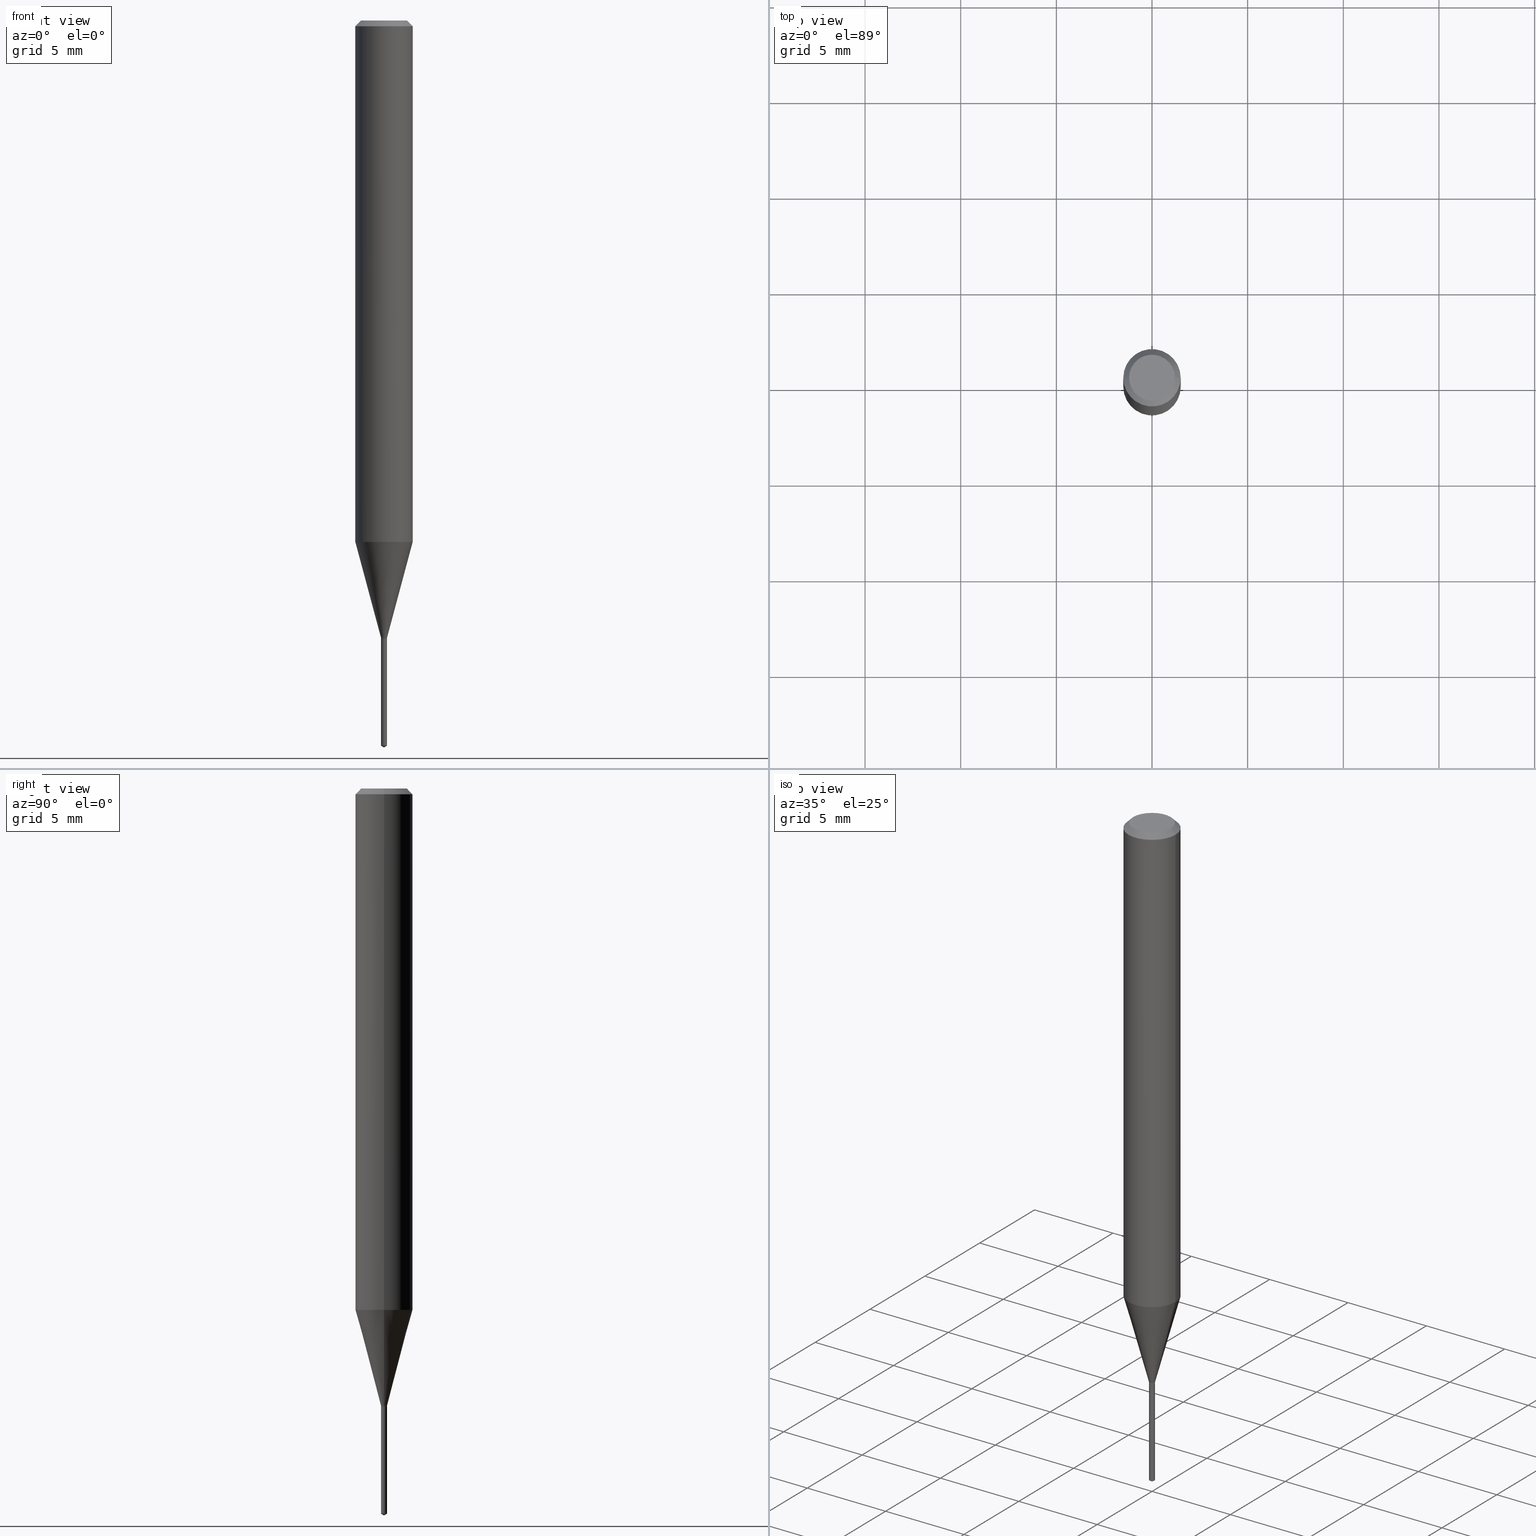
[diagram: canonical four-view strip — front | top / right | iso, engineering-drawing reading convention]
A machine part, canonical four-view strip (front | top / right | iso — engineering-drawing reading convention). The complete STEP part file that produces these views, byte-faithful:
ISO-10303-21;
HEADER;
FILE_DESCRIPTION (( 'STEP AP203' ),
    '1' );
FILE_NAME ('08073.STEP',
    '2024-04-24T10:37:50',
    ( '' ),
    ( '' ),
    'SwSTEP 2.0',
    'SolidWorks 2023',
    '' );
FILE_SCHEMA (( 'CONFIG_CONTROL_DESIGN' ));
ENDSEC;

DATA;
#1 = CIRCLE ( 'NONE', #359, 0.006300000000000000044 ) ;
#2 = CARTESIAN_POINT ( 'NONE',  ( 3.109902680825638129E-29, -4.440116818606828093E-15, -1.271700000000000053 ) ) ;
#3 = PERSON_AND_ORGANIZATION ( #432, #321 ) ;
#4 = FACE_OUTER_BOUND ( 'NONE', #235, .T. ) ;
#5 = DIRECTION ( 'NONE',  ( 1.000000000000000000, -6.982962677686266711E-15, 0.000000000000000000 ) ) ;
#6 = AXIS2_PLACEMENT_3D ( 'NONE', #490, #33, #31 ) ;
#7 = DIRECTION ( 'NONE',  ( 1.000000000000000000, -6.982962677686266711E-15, 0.000000000000000000 ) ) ;
#8 = SECURITY_CLASSIFICATION ( '', '', #202 ) ;
#9 = EDGE_LOOP ( 'NONE', ( #478, #354 ) ) ;
#10 = EDGE_CURVE ( 'NONE', #19, #473, #255, .T. ) ;
#11 = DIRECTION ( 'NONE',  ( 2.438088387897960049E-29, -3.491481338843145188E-15, -1.000000000000000000 ) ) ;
#12 = VERTEX_POINT ( 'NONE', #108 ) ;
#13 = LINE ( 'NONE', #94, #375 ) ;
#14 = ORIENTED_EDGE ( 'NONE', *, *, #115, .F. ) ;
#15 = PERSON_AND_ORGANIZATION_ROLE ( 'classification_officer' ) ;
#16 = CIRCLE ( 'NONE', #106, 0.05905000000000013710 ) ;
#17 = LINE ( 'NONE', #285, #408 ) ;
#18 = CC_DESIGN_PERSON_AND_ORGANIZATION_ASSIGNMENT ( #348, #15, ( #8 ) ) ;
#19 = VERTEX_POINT ( 'NONE', #356 ) ;
#20 = PERSON_AND_ORGANIZATION_ROLE ( 'design_supplier' ) ;
#21 = ORIENTED_EDGE ( 'NONE', *, *, #10, .F. ) ;
#22 =( NAMED_UNIT ( * ) PLANE_ANGLE_UNIT ( ) SI_UNIT ( $, .RADIAN. ) );
#23 = ORIENTED_EDGE ( 'NONE', *, *, #335, .F. ) ;
#24 = ORIENTED_EDGE ( 'NONE', *, *, #133, .T. ) ;
#25 = EDGE_CURVE ( 'NONE', #312, #420, #1, .T. ) ;
#26 = EDGE_LOOP ( 'NONE', ( #219, #105, #275, #50 ) ) ;
#27 = DIRECTION ( 'NONE',  ( -2.445451076271118923E-29, 3.491506729089142946E-15, 1.000000000000000000 ) ) ;
#28 = DIRECTION ( 'NONE',  ( 1.000000000000000000, -6.982962677686266711E-15, 4.876176775795936353E-29 ) ) ;
#29 = APPROVAL_ROLE ( '' ) ;
#30 = CARTESIAN_POINT ( 'NONE',  ( 3.649404838281690628E-29, -5.210394102578582673E-15, -1.492314578100126354 ) ) ;
#31 = DIRECTION ( 'NONE',  ( 1.000000000000000000, -6.982962677686266711E-15, 4.876185090822587894E-29 ) ) ;
#32 = CARTESIAN_POINT ( 'NONE',  ( 3.109902680825638129E-29, -4.440116818606828093E-15, -1.271700000000000053 ) ) ;
#33 = DIRECTION ( 'NONE',  ( -2.445468806185136597E-29, 3.491481338843145583E-15, 1.000000000000000000 ) ) ;
#34 = DIRECTION ( 'NONE',  ( 1.000000000000000000, -6.982962677686266711E-15, 0.000000000000000000 ) ) ;
#35 = DIRECTION ( 'NONE',  ( -6.982962677686266711E-15, -1.000000000000000000, 0.000000000000000000 ) ) ;
#36 = VECTOR ( 'NONE', #62, 39.37007874015748143 ) ;
#37 = CIRCLE ( 'NONE', #392, 0.006300000000000000044 ) ;
#38 = APPROVAL_PERSON_ORGANIZATION ( #3, #248, #29 ) ;
#39 = FACE_OUTER_BOUND ( 'NONE', #45, .T. ) ;
#40 = EDGE_CURVE ( 'NONE', #473, #420, #319, .T. ) ;
#41 = DIRECTION ( 'NONE',  ( -2.445468806185136877E-29, 3.491481338843145188E-15, 1.000000000000000000 ) ) ;
#42 = ORIENTED_EDGE ( 'NONE', *, *, #65, .T. ) ;
#43 = COORDINATED_UNIVERSAL_TIME_OFFSET ( 5, 0, .BEHIND. ) ;
#44 = DIRECTION ( 'NONE',  ( -2.445468806185136877E-29, 3.491481338843145188E-15, 1.000000000000000000 ) ) ;
#45 = EDGE_LOOP ( 'NONE', ( #173, #183, #303 ) ) ;
#46 = ADVANCED_FACE ( 'NONE', ( #102 ), #434, .T. ) ;
#47 = VECTOR ( 'NONE', #231, 39.37007874015747433 ) ;
#48 = CARTESIAN_POINT ( 'NONE',  ( 3.105256290093886268E-29, -4.433483004063025590E-15, -1.269800000000000040 ) ) ;
#49 = LOCAL_TIME ( 6, 37, 50.00000000000000000, #171 ) ;
#50 = ORIENTED_EDGE ( 'NONE', *, *, #25, .F. ) ;
#51 = DIRECTION ( 'NONE',  ( 1.000000000000000000, -6.982962677686265922E-15, 4.876176775795935793E-29 ) ) ;
#52 = EDGE_LOOP ( 'NONE', ( #23, #283, #42, #424 ) ) ;
#53 = PERSON_AND_ORGANIZATION ( #432, #321 ) ;
#54 = APPROVAL ( #211, 'UNSPECIFIED' ) ;
#55 = VERTEX_POINT ( 'NONE', #208 ) ;
#56 = DATE_AND_TIME ( #428, #419 ) ;
#57 = CIRCLE ( 'NONE', #240, 0.04724000000000000421 ) ;
#58 = CONICAL_SURFACE ( 'NONE', #130, 0.05904999999999999832, 0.7853981633974452814 ) ;
#59 = CARTESIAN_POINT ( 'NONE',  ( -4.399266486939238160E-17, -0.006300000000004440937, -1.271700000000000053 ) ) ;
#60 = APPLICATION_PROTOCOL_DEFINITION ( 'international standard', 'config_control_design', 1994, #290 ) ;
#61 = DIRECTION ( 'NONE',  ( 1.000000000000000000, -6.982962677686194135E-15, 0.000000000000000000 ) ) ;
#62 = DIRECTION ( 'NONE',  ( -5.985567269336000444E-15, -0.8571673007021186619, 0.5150380749100436084 ) ) ;
#63 = APPROVAL_STATUS ( 'not_yet_approved' ) ;
#64 = DIRECTION ( 'NONE',  ( -2.445468806185136597E-29, 3.491481338843145583E-15, 1.000000000000000000 ) ) ;
#65 = EDGE_CURVE ( 'NONE', #239, #308, #287, .T. ) ;
#66 = COORDINATED_UNIVERSAL_TIME_OFFSET ( 5, 0, .BEHIND. ) ;
#67 = AXIS2_PLACEMENT_3D ( 'NONE', #32, #407, #35 ) ;
#68 = ORIENTED_EDGE ( 'NONE', *, *, #304, .T. ) ;
#69 = CIRCLE ( 'NONE', #6, 0.04724000000000000421 ) ;
#70 = DATE_TIME_ROLE ( 'classification_date' ) ;
#71 = CYLINDRICAL_SURFACE ( 'NONE', #360, 0.006300000000000000044 ) ;
#72 = ORIENTED_EDGE ( 'NONE', *, *, #433, .F. ) ;
#73 = DIRECTION ( 'NONE',  ( -2.445468806185136597E-29, 3.491481338843145583E-15, 1.000000000000000000 ) ) ;
#74 = DIRECTION ( 'NONE',  ( -0.7071067811866191821, 7.493145998870612907E-15, 0.7071067811864758523 ) ) ;
#75 = FACE_OUTER_BOUND ( 'NONE', #257, .T. ) ;
#76 = PRODUCT_DEFINITION_FORMATION_WITH_SPECIFIED_SOURCE ( 'ANY', '', #116, .NOT_KNOWN. ) ;
#77 = CARTESIAN_POINT ( 'NONE',  ( 3.649404838281690628E-29, -5.210394102578582673E-15, -1.492314578100126354 ) ) ;
#78 = CARTESIAN_POINT ( 'NONE',  ( -0.005799999999999999600, -4.398905339932742876E-15, -1.271700000000000053 ) ) ;
#79 = DIRECTION ( 'NONE',  ( -6.982962677686266711E-15, -1.000000000000000000, 0.000000000000000000 ) ) ;
#80 = EDGE_CURVE ( 'NONE', #358, #239, #57, .T. ) ;
#81 = DIRECTION ( 'NONE',  ( -2.445468806185136597E-29, 3.491481338843145583E-15, 1.000000000000000000 ) ) ;
#82 = DIRECTION ( 'NONE',  ( 1.000000000000000000, -6.982962677686266711E-15, 0.000000000000000000 ) ) ;
#83 = AXIS2_PLACEMENT_3D ( 'NONE', #377, #350, #172 ) ;
#84 = AXIS2_PLACEMENT_3D ( 'NONE', #163, #131, #382 ) ;
#85 = LOCAL_TIME ( 6, 37, 50.00000000000000000, #390 ) ;
#86 = CARTESIAN_POINT ( 'NONE',  ( 3.105256290093886268E-29, -4.433483004063025590E-15, -1.269800000000000040 ) ) ;
#87 = VERTEX_POINT ( 'NONE', #216 ) ;
#88 = DIRECTION ( 'NONE',  ( 6.090539988449838389E-15, 0.8571673007021223256, 0.5150380749100376132 ) ) ;
#89 = ADVANCED_FACE ( 'NONE', ( #363 ), #327, .T. ) ;
#90 = ORIENTED_EDGE ( 'NONE', *, *, #168, .F. ) ;
#91 = CARTESIAN_POINT ( 'NONE',  ( 3.109902680825638129E-29, -4.440116818606828093E-15, -1.271700000000000053 ) ) ;
#92 = ORIENTED_EDGE ( 'NONE', *, *, #323, .T. ) ;
#93 = CONICAL_SURFACE ( 'NONE', #84, 0.005799999999999999600, 0.7853981633975496424 ) ;
#94 = CARTESIAN_POINT ( 'NONE',  ( 0.006300000000000000044, -4.399266486942348614E-17, 3.071991368751439949E-31 ) ) ;
#95 = ORIENTED_EDGE ( 'NONE', *, *, #387, .T. ) ;
#96 = APPROVAL_DATE_TIME ( #56, #54 ) ;
#97 = EDGE_LOOP ( 'NONE', ( #169, #471, #123, #399 ) ) ;
#98 = COORDINATED_UNIVERSAL_TIME_OFFSET ( 5, 0, .BEHIND. ) ;
#99 = ORIENTED_EDGE ( 'NONE', *, *, #199, .F. ) ;
#100 = DIRECTION ( 'NONE',  ( 2.445468806185136597E-29, -3.491481338843145583E-15, -1.000000000000000000 ) ) ;
#101 = VECTOR ( 'NONE', #260, 39.37007874015748143 ) ;
#102 = FACE_OUTER_BOUND ( 'NONE', #458, .T. ) ;
#103 = EDGE_CURVE ( 'NONE', #420, #312, #310, .T. ) ;
#104 = ORIENTED_EDGE ( 'NONE', *, *, #103, .F. ) ;
#105 = ORIENTED_EDGE ( 'NONE', *, *, #152, .T. ) ;
#106 = AXIS2_PLACEMENT_3D ( 'NONE', #489, #449, #146 ) ;
#107 = CONICAL_SURFACE ( 'NONE', #343, 65.52281426577077639, 1.029744258676670299 ) ;
#108 = CARTESIAN_POINT ( 'NONE',  ( -0.005799999999999999600, -4.396256112758631675E-15, -1.271700000000000053 ) ) ;
#109 = ADVANCED_FACE ( 'NONE', ( #405 ), #150, .T. ) ;
#110 = APPROVAL_DATE_TIME ( #222, #248 ) ;
#111 = LINE ( 'NONE', #297, #129 ) ;
#112 = DIRECTION ( 'NONE',  ( 2.445468806185136597E-29, -3.491481338843145583E-15, -1.000000000000000000 ) ) ;
#113 = AXIS2_PLACEMENT_3D ( 'NONE', #487, #414, #156 ) ;
#114 = AXIS2_PLACEMENT_3D ( 'NONE', #86, #272, #425 ) ;
#115 = EDGE_CURVE ( 'NONE', #289, #440, #16, .T. ) ;
#116 = PRODUCT ( '08073', '08073', '', ( #134 ) ) ;
#117 = CARTESIAN_POINT ( 'NONE',  ( -0.04724000000000000421, 3.504923541997677355E-16, -3.380025165670481712E-19 ) ) ;
#118 = SHAPE_DEFINITION_REPRESENTATION ( #296, #158 ) ;
#119 = CYLINDRICAL_SURFACE ( 'NONE', #332, 0.006300000000000000044 ) ;
#120 =( GEOMETRIC_REPRESENTATION_CONTEXT ( 3 ) GLOBAL_UNCERTAINTY_ASSIGNED_CONTEXT ( ( #439 ) ) GLOBAL_UNIT_ASSIGNED_CONTEXT ( ( #355, #22, #280 ) ) REPRESENTATION_CONTEXT ( 'NONE', 'WORKASPACE' ) );
#121 = ADVANCED_FACE ( 'NONE', ( #75 ), #188, .T. ) ;
#122 = DIRECTION ( 'NONE',  ( -2.438088387897960049E-29, 3.491481338843145188E-15, 1.000000000000000000 ) ) ;
#123 = ORIENTED_EDGE ( 'NONE', *, *, #138, .T. ) ;
#124 = PLANE ( 'NONE',  #384 ) ;
#125 = ORIENTED_EDGE ( 'NONE', *, *, #293, .T. ) ;
#126 = DIRECTION ( 'NONE',  ( -1.000000000000000000, 6.982962677686265922E-15, -4.876176775795935793E-29 ) ) ;
#127 = EDGE_LOOP ( 'NONE', ( #379, #24, #125, #386 ) ) ;
#128 = AXIS2_PLACEMENT_3D ( 'NONE', #30, #412, #79 ) ;
#129 = VECTOR ( 'NONE', #187, 39.37007874015748143 ) ;
#130 = AXIS2_PLACEMENT_3D ( 'NONE', #149, #112, #451 ) ;
#131 = DIRECTION ( 'NONE',  ( -2.445468806185136597E-29, 3.491481338843145583E-15, 1.000000000000000000 ) ) ;
#132 = ORIENTED_EDGE ( 'NONE', *, *, #349, .T. ) ;
#133 = EDGE_CURVE ( 'NONE', #440, #289, #383, .T. ) ;
#134 = MECHANICAL_CONTEXT ( 'NONE', #374, 'mechanical' ) ;
#135 = EDGE_LOOP ( 'NONE', ( #244, #426, #164, #90 ) ) ;
#136 = ORIENTED_EDGE ( 'NONE', *, *, #168, .T. ) ;
#137 = LENGTH_MEASURE_WITH_UNIT ( LENGTH_MEASURE( 0.02539999999999999897 ), #317 );
#138 = EDGE_CURVE ( 'NONE', #55, #308, #351, .T. ) ;
#139 = VERTEX_POINT ( 'NONE', #184 ) ;
#140 = DATE_AND_TIME ( #477, #85 ) ;
#141 = CARTESIAN_POINT ( 'NONE',  ( 3.109902680825638129E-29, -4.440116818606828093E-15, -1.271700000000000053 ) ) ;
#142 = ORIENTED_EDGE ( 'NONE', *, *, #262, .F. ) ;
#143 = CC_DESIGN_DATE_AND_TIME_ASSIGNMENT ( #140, #479, ( #365 ) ) ;
#144 = APPROVAL_STATUS ( 'not_yet_approved' ) ;
#145 = DIRECTION ( 'NONE',  ( 1.000000000000000000, -6.982962677686266711E-15, 4.876176775795936353E-29 ) ) ;
#146 = DIRECTION ( 'NONE',  ( 1.000000000000000000, -6.982962677686264344E-15, 0.000000000000000000 ) ) ;
#147 = DIRECTION ( 'NONE',  ( -6.982962677686265922E-15, -1.000000000000000000, 3.468864327941469969E-15 ) ) ;
#148 = DIRECTION ( 'NONE',  ( 1.000000000000000000, -6.982962677686267499E-15, 4.876176775795936353E-29 ) ) ;
#149 = CARTESIAN_POINT ( 'NONE',  ( 2.888098660104663766E-31, -4.123439461173779647E-17, -0.01181000000000007044 ) ) ;
#150 = CYLINDRICAL_SURFACE ( 'NONE', #113, 0.006300000000000000044 ) ;
#151 = DIRECTION ( 'NONE',  ( -2.445468806185136597E-29, 3.491481338843145583E-15, 1.000000000000000000 ) ) ;
#152 = EDGE_CURVE ( 'NONE', #87, #473, #212, .T. ) ;
#153 = AXIS2_PLACEMENT_3D ( 'NONE', #342, #339, #5 ) ;
#154 = AXIS2_PLACEMENT_3D ( 'NONE', #254, #396, #469 ) ;
#155 = CYLINDRICAL_SURFACE ( 'NONE', #298, 0.05905000000000006771 ) ;
#156 = DIRECTION ( 'NONE',  ( -6.982962677686266711E-15, -1.000000000000000000, 0.000000000000000000 ) ) ;
#157 = PLANE ( 'NONE',  #170 ) ;
#158 = ADVANCED_BREP_SHAPE_REPRESENTATION ( '08073', ( #227, #215, #154 ), #120 ) ;
#159 = PRODUCT_RELATED_PRODUCT_CATEGORY ( 'detail', '', ( #116 ) ) ;
#160 = FACE_OUTER_BOUND ( 'NONE', #9, .T. ) ;
#161 = ORIENTED_EDGE ( 'NONE', *, *, #199, .T. ) ;
#162 = CONICAL_SURFACE ( 'NONE', #401, 0.006300000000000000044, 0.2617993877991500740 ) ;
#163 = CARTESIAN_POINT ( 'NONE',  ( 3.109902680825638129E-29, -4.440116818606828093E-15, -1.271700000000000053 ) ) ;
#164 = ORIENTED_EDGE ( 'NONE', *, *, #226, .T. ) ;
#165 = CARTESIAN_POINT ( 'NONE',  ( -0.006300000000000000044, -4.391162848647330369E-15, -1.271200000000000108 ) ) ;
#166 = ORIENTED_EDGE ( 'NONE', *, *, #226, .F. ) ;
#167 = DIRECTION ( 'NONE',  ( 0.7071067811865453523, -7.319954787623248157E-15, -0.7071067811865496822 ) ) ;
#168 = EDGE_CURVE ( 'NONE', #316, #279, #400, .T. ) ;
#169 = ORIENTED_EDGE ( 'NONE', *, *, #80, .F. ) ;
#170 = AXIS2_PLACEMENT_3D ( 'NONE', #421, #122, #51 ) ;
#171 = COORDINATED_UNIVERSAL_TIME_OFFSET ( 5, 0, .BEHIND. ) ;
#172 = DIRECTION ( 'NONE',  ( 1.000000000000000000, -6.982962677686194135E-15, 0.000000000000000000 ) ) ;
#173 = ORIENTED_EDGE ( 'NONE', *, *, #463, .F. ) ;
#174 = CARTESIAN_POINT ( 'NONE',  ( 2.888098660104663766E-31, -4.123439461173779647E-17, -0.01181000000000007044 ) ) ;
#175 = CARTESIAN_POINT ( 'NONE',  ( -0.006300000000000000044, 4.476419235288631203E-17, -3.098929106860590479E-31 ) ) ;
#176 = ORIENTED_EDGE ( 'NONE', *, *, #349, .F. ) ;
#177 = DATE_AND_TIME ( #325, #370 ) ;
#178 = CIRCLE ( 'NONE', #153, 0.005799999999999999600 ) ;
#179 = EDGE_LOOP ( 'NONE', ( #324, #72 ) ) ;
#180 = CARTESIAN_POINT ( 'NONE',  ( 8.265746106709734507E-48, -1.180129479067563789E-33, -3.380025165646692144E-19 ) ) ;
#181 = FACE_OUTER_BOUND ( 'NONE', #203, .T. ) ;
#182 = EDGE_CURVE ( 'NONE', #87, #312, #17, .T. ) ;
#183 = ORIENTED_EDGE ( 'NONE', *, *, #10, .T. ) ;
#184 = CARTESIAN_POINT ( 'NONE',  ( -0.006300000000000000044, -4.391162848647330369E-15, -1.269800000000000040 ) ) ;
#185 = CC_DESIGN_APPROVAL ( #248, ( #8 ) ) ;
#186 = EDGE_CURVE ( 'NONE', #308, #55, #190, .T. ) ;
#187 = DIRECTION ( 'NONE',  ( -2.445468806185136877E-29, 3.491481338843145188E-15, 1.000000000000000000 ) ) ;
#188 = CYLINDRICAL_SURFACE ( 'NONE', #250, 0.006300000000000000044 ) ;
#189 = FACE_OUTER_BOUND ( 'NONE', #314, .T. ) ;
#190 = CIRCLE ( 'NONE', #444, 0.05904999999999999832 ) ;
#191 = DIRECTION ( 'NONE',  ( -0.2588190451025213501, 5.211531920934551042E-15, 0.9659258262890682012 ) ) ;
#192 = CC_DESIGN_PERSON_AND_ORGANIZATION_ASSIGNMENT ( #322, #430, ( #365 ) ) ;
#193 = DIRECTION ( 'NONE',  ( 2.445451076271118923E-29, -3.491506729089142552E-15, -1.000000000000000000 ) ) ;
#194 = ORIENTED_EDGE ( 'NONE', *, *, #293, .F. ) ;
#195 = CALENDAR_DATE ( 2024, 24, 4 ) ;
#196 = CARTESIAN_POINT ( 'NONE',  ( -4.399266486939238160E-17, -0.006300000000004440937, -1.271700000000000053 ) ) ;
#197 = ORIENTED_EDGE ( 'NONE', *, *, #445, .T. ) ;
#198 = DIRECTION ( 'NONE',  ( 1.000000000000000000, -6.982962677686194135E-15, 0.000000000000000000 ) ) ;
#199 = EDGE_CURVE ( 'NONE', #279, #316, #251, .T. ) ;
#200 = LINE ( 'NONE', #457, #268 ) ;
#201 = ORIENTED_EDGE ( 'NONE', *, *, #427, .T. ) ;
#202 = SECURITY_CLASSIFICATION_LEVEL ( 'unclassified' ) ;
#203 = EDGE_LOOP ( 'NONE', ( #429, #95, #340, #194 ) ) ;
#204 = AXIS2_PLACEMENT_3D ( 'NONE', #48, #455, #198 ) ;
#205 = EDGE_CURVE ( 'NONE', #316, #139, #442, .T. ) ;
#206 = CARTESIAN_POINT ( 'NONE',  ( 3.105256290093886268E-29, -4.433483004063025590E-15, -1.269800000000000040 ) ) ;
#207 = DIRECTION ( 'NONE',  ( 1.000000000000000000, -6.982962677686267499E-15, 4.876176775795936353E-29 ) ) ;
#208 = CARTESIAN_POINT ( 'NONE',  ( 0.05904999999999999832, -4.535783407291118600E-16, -0.01181000000000007044 ) ) ;
#209 = APPROVAL_DATE_TIME ( #177, #230 ) ;
#210 = DIRECTION ( 'NONE',  ( 1.000000000000000000, -6.982962677686194135E-15, 0.000000000000000000 ) ) ;
#211 = APPROVAL_STATUS ( 'not_yet_approved' ) ;
#212 = CIRCLE ( 'NONE', #128, 0.006300000000000000044 ) ;
#213 = CIRCLE ( 'NONE', #353, 0.005799999999999999600 ) ;
#214 = CARTESIAN_POINT ( 'NONE',  ( 2.888098660104663766E-31, -4.123439461173779647E-17, -0.01181000000000007044 ) ) ;
#215 = MANIFOLD_SOLID_BREP ( 'Body-Move/Copy2[2]', #232 ) ;
#216 = CARTESIAN_POINT ( 'NONE',  ( 4.476419235292279068E-17, 0.006299999999994788068, -1.492314578100126354 ) ) ;
#217 = ADVANCED_FACE ( 'NONE', ( #294 ), #58, .T. ) ;
#218 = CARTESIAN_POINT ( 'NONE',  ( 0.005799999999999999600, -4.480618002137408553E-15, -1.271700000000000053 ) ) ;
#219 = ORIENTED_EDGE ( 'NONE', *, *, #182, .F. ) ;
#220 = FACE_OUTER_BOUND ( 'NONE', #422, .T. ) ;
#221 = DIRECTION ( 'NONE',  ( -2.445468806185136597E-29, 3.491481338843145583E-15, 1.000000000000000000 ) ) ;
#222 = DATE_AND_TIME ( #195, #393 ) ;
#223 = AXIS2_PLACEMENT_3D ( 'NONE', #206, #64, #210 ) ;
#224 = VECTOR ( 'NONE', #263, 39.37007874015748143 ) ;
#225 = APPROVAL_PERSON_ORGANIZATION ( #284, #54, #362 ) ;
#226 = EDGE_CURVE ( 'NONE', #249, #279, #453, .T. ) ;
#227 = MANIFOLD_SOLID_BREP ( 'Body-Move/Copy2[1]', #415 ) ;
#228 = CARTESIAN_POINT ( 'NONE',  ( -9.261893952565592859E-28, 1.322372839174148049E-13, 37.87397874015748300 ) ) ;
#229 = DIMENSIONAL_EXPONENTS ( 1.000000000000000000, 0.000000000000000000, 0.000000000000000000, 0.000000000000000000, 0.000000000000000000, 0.000000000000000000, 0.000000000000000000 ) ;
#230 = APPROVAL ( #63, 'UNSPECIFIED' ) ;
#231 = DIRECTION ( 'NONE',  ( 0.2588190451025213501, 1.565188264969621968E-15, 0.9659258262890682012 ) ) ;
#232 = CLOSED_SHELL ( 'NONE', ( #410, #217, #273, #299, #481, #121, #46, #89, #488, #448, #394, #241 ) ) ;
#233 = CONICAL_SURFACE ( 'NONE', #476, 65.52281426577077639, 1.029744258676670299 ) ;
#234 = DIRECTION ( 'NONE',  ( -2.445468806185136597E-29, 3.491481338843145583E-15, 1.000000000000000000 ) ) ;
#235 = EDGE_LOOP ( 'NONE', ( #391, #468 ) ) ;
#236 = FACE_OUTER_BOUND ( 'NONE', #381, .T. ) ;
#237 = EDGE_LOOP ( 'NONE', ( #464, #306, #104, #389 ) ) ;
#238 = DIRECTION ( 'NONE',  ( -2.445451076271118923E-29, 3.491506729089142946E-15, 1.000000000000000000 ) ) ;
#239 = VERTEX_POINT ( 'NONE', #117 ) ;
#240 = AXIS2_PLACEMENT_3D ( 'NONE', #180, #253, #441 ) ;
#241 = ADVANCED_FACE ( 'NONE', ( #265 ), #436, .T. ) ;
#242 = VECTOR ( 'NONE', #44, 39.37007874015748143 ) ;
#243 = CARTESIAN_POINT ( 'NONE',  ( -0.006300000000000000044, -4.388718811710139476E-15, -1.269800000000000040 ) ) ;
#244 = ORIENTED_EDGE ( 'NONE', *, *, #304, .F. ) ;
#245 = PERSON_AND_ORGANIZATION ( #432, #321 ) ;
#246 = ORIENTED_EDGE ( 'NONE', *, *, #133, .F. ) ;
#247 = PERSON_AND_ORGANIZATION_ROLE ( 'creator' ) ;
#248 = APPROVAL ( #144, 'UNSPECIFIED' ) ;
#249 = VERTEX_POINT ( 'NONE', #218 ) ;
#250 = AXIS2_PLACEMENT_3D ( 'NONE', #452, #337, #148 ) ;
#251 = CIRCLE ( 'NONE', #336, 0.006300000000000000044 ) ;
#252 = DIRECTION ( 'NONE',  ( -1.000000000000000000, 6.982962677686266711E-15, 0.000000000000000000 ) ) ;
#253 = DIRECTION ( 'NONE',  ( -2.445468806185136597E-29, 3.491481338843145583E-15, 1.000000000000000000 ) ) ;
#254 = CARTESIAN_POINT ( 'NONE',  ( 0.000000000000000000, 0.000000000000000000, 0.000000000000000000 ) ) ;
#255 = LINE ( 'NONE', #395, #36 ) ;
#256 = DIRECTION ( 'NONE',  ( -2.445451076271118643E-29, 3.491506729089142552E-15, 1.000000000000000000 ) ) ;
#257 = EDGE_LOOP ( 'NONE', ( #345, #136, #281, #397 ) ) ;
#258 = ADVANCED_FACE ( 'NONE', ( #486 ), #71, .T. ) ;
#259 = AXIS2_PLACEMENT_3D ( 'NONE', #475, #403, #28 ) ;
#260 = DIRECTION ( 'NONE',  ( -0.7071067811865453523, 2.468850131082234184E-15, -0.7071067811865496822 ) ) ;
#261 = CARTESIAN_POINT ( 'NONE',  ( 0.006300000000000000044, -4.477475668932449058E-15, -1.269800000000000040 ) ) ;
#262 = EDGE_CURVE ( 'NONE', #473, #87, #37, .T. ) ;
#263 = DIRECTION ( 'NONE',  ( 0.7071067811866191821, -2.468850131083007662E-15, 0.7071067811864758523 ) ) ;
#264 = DIRECTION ( 'NONE',  ( 1.000000000000000000, -6.982962677686264344E-15, 0.000000000000000000 ) ) ;
#265 = FACE_OUTER_BOUND ( 'NONE', #135, .T. ) ;
#266 = ADVANCED_FACE ( 'NONE', ( #189 ), #233, .T. ) ;
#267 = CARTESIAN_POINT ( 'NONE',  ( 0.000000000000000000, 0.000000000000000000, 0.000000000000000000 ) ) ;
#268 = VECTOR ( 'NONE', #88, 39.37007874015748854 ) ;
#269 = VERTEX_POINT ( 'NONE', #261 ) ;
#270 = CARTESIAN_POINT ( 'NONE',  ( 0.006300000000000000044, -4.477475668932449058E-15, -1.269800000000000040 ) ) ;
#271 = ORIENTED_EDGE ( 'NONE', *, *, #357, .F. ) ;
#272 = DIRECTION ( 'NONE',  ( -2.445468806185136597E-29, 3.491481338843145583E-15, 1.000000000000000000 ) ) ;
#273 = ADVANCED_FACE ( 'NONE', ( #181 ), #155, .T. ) ;
#274 = CARTESIAN_POINT ( 'NONE',  ( -4.399266486938697667E-17, -0.006300000000005210286, -1.492314578100126354 ) ) ;
#275 = ORIENTED_EDGE ( 'NONE', *, *, #40, .T. ) ;
#276 = CONICAL_SURFACE ( 'NONE', #302, 0.05904999999999999832, 0.7853981633974452814 ) ;
#277 = ORIENTED_EDGE ( 'NONE', *, *, #323, .F. ) ;
#278 = CC_DESIGN_PERSON_AND_ORGANIZATION_ASSIGNMENT ( #53, #20, ( #76 ) ) ;
#279 = VERTEX_POINT ( 'NONE', #292 ) ;
#280 =( NAMED_UNIT ( * ) SI_UNIT ( $, .STERADIAN. ) SOLID_ANGLE_UNIT ( ) );
#281 = ORIENTED_EDGE ( 'NONE', *, *, #357, .T. ) ;
#282 = VECTOR ( 'NONE', #167, 39.37007874015748143 ) ;
#283 = ORIENTED_EDGE ( 'NONE', *, *, #286, .F. ) ;
#284 = PERSON_AND_ORGANIZATION ( #432, #321 ) ;
#285 = CARTESIAN_POINT ( 'NONE',  ( 4.476419235291740424E-17, 0.006299999999995560020, -1.271700000000000053 ) ) ;
#286 = EDGE_CURVE ( 'NONE', #239, #358, #69, .T. ) ;
#287 = LINE ( 'NONE', #366, #101 ) ;
#288 = DIRECTION ( 'NONE',  ( -2.445468806185136597E-29, 3.491481338843145583E-15, 1.000000000000000000 ) ) ;
#289 = VERTEX_POINT ( 'NONE', #446 ) ;
#290 = APPLICATION_CONTEXT ( 'configuration controlled 3d designs of mechanical parts and assemblies' ) ;
#291 = CC_DESIGN_APPROVAL ( #54, ( #76 ) ) ;
#292 = CARTESIAN_POINT ( 'NONE',  ( 0.006300000000000000044, -4.482363742806830057E-15, -1.271200000000000108 ) ) ;
#293 = EDGE_CURVE ( 'NONE', #289, #55, #111, .T. ) ;
#294 = FACE_OUTER_BOUND ( 'NONE', #97, .T. ) ;
#295 = CARTESIAN_POINT ( 'NONE',  ( 2.623827410402727989E-29, -3.746130155737801060E-15, -1.072934319900741729 ) ) ;
#296 = PRODUCT_DEFINITION_SHAPE ( 'NONE', 'NONE',  #365 ) ;
#297 = CARTESIAN_POINT ( 'NONE',  ( 0.05905000000000006771, -4.123439461173745257E-16, 2.879382386107503723E-30 ) ) ;
#298 = AXIS2_PLACEMENT_3D ( 'NONE', #483, #73, #145 ) ;
#299 = ADVANCED_FACE ( 'NONE', ( #220 ), #162, .T. ) ;
#300 = CARTESIAN_POINT ( 'NONE',  ( -0.05905000000000014404, -3.326554670271460778E-15, -1.072934319900741729 ) ) ;
#301 = PLANE ( 'NONE',  #485 ) ;
#302 = AXIS2_PLACEMENT_3D ( 'NONE', #174, #100, #252 ) ;
#303 = ORIENTED_EDGE ( 'NONE', *, *, #152, .F. ) ;
#304 = EDGE_CURVE ( 'NONE', #12, #316, #411, .T. ) ;
#305 = LINE ( 'NONE', #243, #466 ) ;
#306 = ORIENTED_EDGE ( 'NONE', *, *, #182, .T. ) ;
#307 = LINE ( 'NONE', #309, #242 ) ;
#308 = VERTEX_POINT ( 'NONE', #459 ) ;
#309 = CARTESIAN_POINT ( 'NONE',  ( -0.05905000000000006771, 4.195754854663396409E-16, -2.904631170795525045E-30 ) ) ;
#310 = CIRCLE ( 'NONE', #67, 0.006300000000000000044 ) ;
#311 = CC_DESIGN_PERSON_AND_ORGANIZATION_ASSIGNMENT ( #315, #398, ( #116 ) ) ;
#312 = VERTEX_POINT ( 'NONE', #378 ) ;
#313 = CALENDAR_DATE ( 2024, 24, 4 ) ;
#314 = EDGE_LOOP ( 'NONE', ( #21, #461, #142 ) ) ;
#315 = PERSON_AND_ORGANIZATION ( #432, #321 ) ;
#316 = VERTEX_POINT ( 'NONE', #165 ) ;
#317 =( LENGTH_UNIT ( ) NAMED_UNIT ( * ) SI_UNIT ( $, .METRE. ) );
#318 = DIRECTION ( 'NONE',  ( -2.445468806185136877E-29, 3.491481338843145188E-15, 1.000000000000000000 ) ) ;
#319 = LINE ( 'NONE', #59, #484 ) ;
#320 = CIRCLE ( 'NONE', #114, 0.006300000000000000044 ) ;
#321 = ORGANIZATION ( 'UNSPECIFIED', 'UNSPECIFIED', '' ) ;
#322 = PERSON_AND_ORGANIZATION ( #432, #321 ) ;
#323 = EDGE_CURVE ( 'NONE', #139, #440, #305, .T. ) ;
#324 = ORIENTED_EDGE ( 'NONE', *, *, #427, .F. ) ;
#325 = CALENDAR_DATE ( 2024, 24, 4 ) ;
#326 = DIRECTION ( 'NONE',  ( -2.445468806185136597E-29, 3.491481338843145583E-15, 1.000000000000000000 ) ) ;
#327 = CYLINDRICAL_SURFACE ( 'NONE', #259, 0.05905000000000006771 ) ;
#328 = DIRECTION ( 'NONE',  ( -6.982962677686266711E-15, -1.000000000000000000, 0.000000000000000000 ) ) ;
#329 = DIRECTION ( 'NONE',  ( -2.445451076271118643E-29, 3.491506729089142552E-15, 1.000000000000000000 ) ) ;
#330 = EDGE_CURVE ( 'NONE', #269, #289, #338, .T. ) ;
#331 = AXIS2_PLACEMENT_3D ( 'NONE', #295, #221, #264 ) ;
#332 = AXIS2_PLACEMENT_3D ( 'NONE', #267, #234, #207 ) ;
#333 = DIRECTION ( 'NONE',  ( 1.000000000000000000, -6.982962677686194135E-15, 0.000000000000000000 ) ) ;
#334 = AXIS2_PLACEMENT_3D ( 'NONE', #2, #151, #34 ) ;
#335 = EDGE_CURVE ( 'NONE', #358, #55, #465, .T. ) ;
#336 = AXIS2_PLACEMENT_3D ( 'NONE', #470, #288, #61 ) ;
#337 = DIRECTION ( 'NONE',  ( -2.445468806185136597E-29, 3.491481338843145583E-15, 1.000000000000000000 ) ) ;
#338 = LINE ( 'NONE', #270, #47 ) ;
#339 = DIRECTION ( 'NONE',  ( -2.445468806185136597E-29, 3.491481338843145583E-15, 1.000000000000000000 ) ) ;
#340 = ORIENTED_EDGE ( 'NONE', *, *, #138, .F. ) ;
#341 = ADVANCED_FACE ( 'NONE', ( #39 ), #107, .T. ) ;
#342 = CARTESIAN_POINT ( 'NONE',  ( 3.109902680825638129E-29, -4.440116818606828093E-15, -1.271700000000000053 ) ) ;
#343 = AXIS2_PLACEMENT_3D ( 'NONE', #344, #238, #380 ) ;
#344 = CARTESIAN_POINT ( 'NONE',  ( -9.261893952565592859E-28, 1.322372839174148049E-13, 37.87397874015748300 ) ) ;
#345 = ORIENTED_EDGE ( 'NONE', *, *, #205, .F. ) ;
#346 = FACE_OUTER_BOUND ( 'NONE', #352, .T. ) ;
#347 = ORIENTED_EDGE ( 'NONE', *, *, #330, .T. ) ;
#348 = PERSON_AND_ORGANIZATION ( #432, #321 ) ;
#349 = EDGE_CURVE ( 'NONE', #269, #139, #320, .T. ) ;
#350 = DIRECTION ( 'NONE',  ( -2.445468806185136597E-29, 3.491481338843145583E-15, 1.000000000000000000 ) ) ;
#351 = CIRCLE ( 'NONE', #450, 0.05904999999999999832 ) ;
#352 = EDGE_LOOP ( 'NONE', ( #161, #443, #176, #271 ) ) ;
#353 = AXIS2_PLACEMENT_3D ( 'NONE', #413, #81, #7 ) ;
#354 = ORIENTED_EDGE ( 'NONE', *, *, #80, .T. ) ;
#355 =( CONVERSION_BASED_UNIT ( 'INCH', #137 ) LENGTH_UNIT ( ) NAMED_UNIT ( #229 ) );
#356 = CARTESIAN_POINT ( 'NONE',  ( 3.658639355209220542E-29, -5.223643217390265926E-15, -1.496099999999999985 ) ) ;
#357 = EDGE_CURVE ( 'NONE', #279, #269, #13, .T. ) ;
#358 = VERTEX_POINT ( 'NONE', #385 ) ;
#359 = AXIS2_PLACEMENT_3D ( 'NONE', #141, #435, #431 ) ;
#360 = AXIS2_PLACEMENT_3D ( 'NONE', #409, #404, #364 ) ;
#361 = CC_DESIGN_APPROVAL ( #230, ( #365 ) ) ;
#362 = APPROVAL_ROLE ( '' ) ;
#363 = FACE_OUTER_BOUND ( 'NONE', #127, .T. ) ;
#364 = DIRECTION ( 'NONE',  ( -6.982962677686266711E-15, -1.000000000000000000, 0.000000000000000000 ) ) ;
#365 = PRODUCT_DEFINITION ( 'UNKNOWN', '', #76, #460 ) ;
#366 = CARTESIAN_POINT ( 'NONE',  ( -0.05904999999999999832, 3.711095515056362547E-16, -0.01181000000000007044 ) ) ;
#367 = CARTESIAN_POINT ( 'NONE',  ( 3.105256290093886268E-29, -4.433483004063025590E-15, -1.269800000000000040 ) ) ;
#368 = CARTESIAN_POINT ( 'NONE',  ( 2.888098660104663766E-31, -4.123439461173779647E-17, -0.01181000000000007044 ) ) ;
#369 = VECTOR ( 'NONE', #74, 39.37007874015748143 ) ;
#370 = LOCAL_TIME ( 6, 37, 50.00000000000000000, #66 ) ;
#371 = DIRECTION ( 'NONE',  ( -2.445451076271118923E-29, 3.491506729089142946E-15, 1.000000000000000000 ) ) ;
#372 = DIRECTION ( 'NONE',  ( -2.445468806185136597E-29, 3.491481338843145583E-15, 1.000000000000000000 ) ) ;
#373 = ADVANCED_FACE ( 'NONE', ( #4 ), #124, .F. ) ;
#374 = APPLICATION_CONTEXT ( 'configuration controlled 3d designs of mechanical parts and assemblies' ) ;
#375 = VECTOR ( 'NONE', #41, 39.37007874015748143 ) ;
#376 = CARTESIAN_POINT ( 'NONE',  ( 0.05904999999999999832, -4.463468013801466955E-16, -0.01181000000000007044 ) ) ;
#377 = CARTESIAN_POINT ( 'NONE',  ( 3.108679946422545888E-29, -4.438371077937407378E-15, -1.271200000000000108 ) ) ;
#378 = CARTESIAN_POINT ( 'NONE',  ( 4.476419235292282766E-17, 0.006299999999995559152, -1.271700000000000053 ) ) ;
#379 = ORIENTED_EDGE ( 'NONE', *, *, #387, .F. ) ;
#380 = DIRECTION ( 'NONE',  ( -6.982962677686265922E-15, -1.000000000000000000, 3.468864327941469969E-15 ) ) ;
#381 = EDGE_LOOP ( 'NONE', ( #201, #68, #99, #166 ) ) ;
#382 = DIRECTION ( 'NONE',  ( 1.000000000000000000, -6.982962677686266711E-15, 0.000000000000000000 ) ) ;
#383 = CIRCLE ( 'NONE', #331, 0.05905000000000013710 ) ;
#384 = AXIS2_PLACEMENT_3D ( 'NONE', #91, #193, #418 ) ;
#385 = CARTESIAN_POINT ( 'NONE',  ( 0.04724000000000000421, -3.852183633974369345E-16, -3.380025165621689721E-19 ) ) ;
#386 = ORIENTED_EDGE ( 'NONE', *, *, #186, .F. ) ;
#387 = EDGE_CURVE ( 'NONE', #440, #308, #307, .T. ) ;
#388 = PERSON_AND_ORGANIZATION ( #432, #321 ) ;
#389 = ORIENTED_EDGE ( 'NONE', *, *, #40, .F. ) ;
#390 = COORDINATED_UNIVERSAL_TIME_OFFSET ( 5, 0, .BEHIND. ) ;
#391 = ORIENTED_EDGE ( 'NONE', *, *, #103, .T. ) ;
#392 = AXIS2_PLACEMENT_3D ( 'NONE', #77, #27, #328 ) ;
#393 = LOCAL_TIME ( 6, 37, 50.00000000000000000, #43 ) ;
#394 = ADVANCED_FACE ( 'NONE', ( #423 ), #157, .F. ) ;
#395 = CARTESIAN_POINT ( 'NONE',  ( 3.658639355209220542E-29, -5.223643217390265926E-15, -1.496099999999999985 ) ) ;
#396 = DIRECTION ( 'NONE',  ( 0.000000000000000000, 0.000000000000000000, 1.000000000000000000 ) ) ;
#397 = ORIENTED_EDGE ( 'NONE', *, *, #445, .F. ) ;
#398 = PERSON_AND_ORGANIZATION_ROLE ( 'design_owner' ) ;
#399 = ORIENTED_EDGE ( 'NONE', *, *, #65, .F. ) ;
#400 = CIRCLE ( 'NONE', #83, 0.006300000000000000044 ) ;
#401 = AXIS2_PLACEMENT_3D ( 'NONE', #367, #406, #333 ) ;
#402 = DATE_AND_TIME ( #313, #49 ) ;
#403 = DIRECTION ( 'NONE',  ( -2.445468806185136597E-29, 3.491481338843145583E-15, 1.000000000000000000 ) ) ;
#404 = DIRECTION ( 'NONE',  ( -2.445451076271118923E-29, 3.491506729089142946E-15, 1.000000000000000000 ) ) ;
#405 = FACE_OUTER_BOUND ( 'NONE', #237, .T. ) ;
#406 = DIRECTION ( 'NONE',  ( -2.445468806185136597E-29, 3.491481338843145583E-15, 1.000000000000000000 ) ) ;
#407 = DIRECTION ( 'NONE',  ( -2.445451076271118923E-29, 3.491506729089142946E-15, 1.000000000000000000 ) ) ;
#408 = VECTOR ( 'NONE', #256, 39.37007874015748143 ) ;
#409 = CARTESIAN_POINT ( 'NONE',  ( 3.109902680825638129E-29, -4.440116818606828093E-15, -1.271700000000000053 ) ) ;
#410 = ADVANCED_FACE ( 'NONE', ( #236 ), #93, .T. ) ;
#411 = LINE ( 'NONE', #78, #369 ) ;
#412 = DIRECTION ( 'NONE',  ( -2.445451076271118923E-29, 3.491506729089142946E-15, 1.000000000000000000 ) ) ;
#413 = CARTESIAN_POINT ( 'NONE',  ( 3.109902680825638129E-29, -4.440116818606828093E-15, -1.271700000000000053 ) ) ;
#414 = DIRECTION ( 'NONE',  ( -2.445451076271118923E-29, 3.491506729089142946E-15, 1.000000000000000000 ) ) ;
#415 = CLOSED_SHELL ( 'NONE', ( #109, #266, #341, #258, #373 ) ) ;
#416 = CC_DESIGN_DATE_AND_TIME_ASSIGNMENT ( #402, #70, ( #8 ) ) ;
#417 = CIRCLE ( 'NONE', #204, 0.006300000000000000044 ) ;
#418 = DIRECTION ( 'NONE',  ( 6.982962677686265922E-15, 1.000000000000000000, -3.491506729089142552E-15 ) ) ;
#419 = LOCAL_TIME ( 6, 37, 50.00000000000000000, #98 ) ;
#420 = VERTEX_POINT ( 'NONE', #196 ) ;
#421 = CARTESIAN_POINT ( 'NONE',  ( 3.109902680825638129E-29, -4.440116818606828093E-15, -1.271700000000000053 ) ) ;
#422 = EDGE_LOOP ( 'NONE', ( #132, #92, #14, #482 ) ) ;
#423 = FACE_OUTER_BOUND ( 'NONE', #179, .T. ) ;
#424 = ORIENTED_EDGE ( 'NONE', *, *, #186, .T. ) ;
#425 = DIRECTION ( 'NONE',  ( 1.000000000000000000, -6.982962677686194135E-15, 0.000000000000000000 ) ) ;
#426 = ORIENTED_EDGE ( 'NONE', *, *, #433, .T. ) ;
#427 = EDGE_CURVE ( 'NONE', #249, #12, #178, .T. ) ;
#428 = CALENDAR_DATE ( 2024, 24, 4 ) ;
#429 = ORIENTED_EDGE ( 'NONE', *, *, #115, .T. ) ;
#430 = PERSON_AND_ORGANIZATION_ROLE ( 'creator' ) ;
#431 = DIRECTION ( 'NONE',  ( -6.982962677686266711E-15, -1.000000000000000000, 0.000000000000000000 ) ) ;
#432 = PERSON ( 'UNSPECIFIED', 'UNSPECIFIED', 'UNSPECIFIED', ('UNSPECIFIED'), ('UNSPECIFIED'), ('UNSPECIFIED') ) ;
#433 = EDGE_CURVE ( 'NONE', #12, #249, #213, .T. ) ;
#434 = CONICAL_SURFACE ( 'NONE', #223, 0.006300000000000000044, 0.2617993877991500740 ) ;
#435 = DIRECTION ( 'NONE',  ( -2.445451076271118923E-29, 3.491506729089142946E-15, 1.000000000000000000 ) ) ;
#436 = CONICAL_SURFACE ( 'NONE', #334, 0.005799999999999999600, 0.7853981633975496424 ) ;
#437 = APPROVAL_PERSON_ORGANIZATION ( #245, #230, #472 ) ;
#438 = APPLICATION_PROTOCOL_DEFINITION ( 'international standard', 'config_control_design', 1994, #374 ) ;
#439 = UNCERTAINTY_MEASURE_WITH_UNIT (LENGTH_MEASURE( 1.000000000000000082E-05 ), #355, 'distance_accuracy_value', 'NONE');
#440 = VERTEX_POINT ( 'NONE', #300 ) ;
#441 = DIRECTION ( 'NONE',  ( 1.000000000000000000, -6.982962677686266711E-15, 4.876185090822587894E-29 ) ) ;
#442 = LINE ( 'NONE', #175, #456 ) ;
#443 = ORIENTED_EDGE ( 'NONE', *, *, #205, .T. ) ;
#444 = AXIS2_PLACEMENT_3D ( 'NONE', #214, #326, #480 ) ;
#445 = EDGE_CURVE ( 'NONE', #139, #269, #417, .T. ) ;
#446 = CARTESIAN_POINT ( 'NONE',  ( 0.05905000000000014404, -4.158474101855175191E-15, -1.072934319900741729 ) ) ;
#447 = CARTESIAN_POINT ( 'NONE',  ( 0.005799999999999999600, -4.480618002137408553E-15, -1.271700000000000053 ) ) ;
#448 = ADVANCED_FACE ( 'NONE', ( #160 ), #301, .F. ) ;
#449 = DIRECTION ( 'NONE',  ( -2.445468806185136597E-29, 3.491481338843145583E-15, 1.000000000000000000 ) ) ;
#450 = AXIS2_PLACEMENT_3D ( 'NONE', #368, #372, #82 ) ;
#451 = DIRECTION ( 'NONE',  ( -1.000000000000000000, 6.982962677686266711E-15, 0.000000000000000000 ) ) ;
#452 = CARTESIAN_POINT ( 'NONE',  ( 0.000000000000000000, 0.000000000000000000, 0.000000000000000000 ) ) ;
#453 = LINE ( 'NONE', #447, #224 ) ;
#454 = CC_DESIGN_PERSON_AND_ORGANIZATION_ASSIGNMENT ( #388, #247, ( #76 ) ) ;
#455 = DIRECTION ( 'NONE',  ( -2.445468806185136597E-29, 3.491481338843145583E-15, 1.000000000000000000 ) ) ;
#456 = VECTOR ( 'NONE', #318, 39.37007874015748143 ) ;
#457 = CARTESIAN_POINT ( 'NONE',  ( 3.658684844895993065E-29, -5.223578639838595725E-15, -1.496099999999999985 ) ) ;
#458 = EDGE_LOOP ( 'NONE', ( #277, #197, #347, #246 ) ) ;
#459 = CARTESIAN_POINT ( 'NONE',  ( -0.05904999999999999832, -1.474106789708429113E-15, -0.01181000000000007044 ) ) ;
#460 = DESIGN_CONTEXT ( 'detailed design', #290, 'design' ) ;
#461 = ORIENTED_EDGE ( 'NONE', *, *, #463, .T. ) ;
#462 = CARTESIAN_POINT ( 'NONE',  ( 4.132873053354867254E-48, -5.900647395337818946E-34, -1.690012582823346072E-19 ) ) ;
#463 = EDGE_CURVE ( 'NONE', #19, #87, #200, .T. ) ;
#464 = ORIENTED_EDGE ( 'NONE', *, *, #262, .T. ) ;
#465 = LINE ( 'NONE', #376, #282 ) ;
#466 = VECTOR ( 'NONE', #191, 39.37007874015747433 ) ;
#467 = CC_DESIGN_SECURITY_CLASSIFICATION ( #8, ( #76 ) ) ;
#468 = ORIENTED_EDGE ( 'NONE', *, *, #25, .T. ) ;
#469 = DIRECTION ( 'NONE',  ( 1.000000000000000000, 0.000000000000000000, 0.000000000000000000 ) ) ;
#470 = CARTESIAN_POINT ( 'NONE',  ( 3.108679946422545888E-29, -4.438371077937407378E-15, -1.271200000000000108 ) ) ;
#471 = ORIENTED_EDGE ( 'NONE', *, *, #335, .T. ) ;
#472 = APPROVAL_ROLE ( '' ) ;
#473 = VERTEX_POINT ( 'NONE', #274 ) ;
#474 = FACE_OUTER_BOUND ( 'NONE', #52, .T. ) ;
#475 = CARTESIAN_POINT ( 'NONE',  ( 0.000000000000000000, 0.000000000000000000, 0.000000000000000000 ) ) ;
#476 = AXIS2_PLACEMENT_3D ( 'NONE', #228, #371, #147 ) ;
#477 = CALENDAR_DATE ( 2024, 24, 4 ) ;
#478 = ORIENTED_EDGE ( 'NONE', *, *, #286, .T. ) ;
#479 = DATE_TIME_ROLE ( 'creation_date' ) ;
#480 = DIRECTION ( 'NONE',  ( 1.000000000000000000, -6.982962677686266711E-15, 0.000000000000000000 ) ) ;
#481 = ADVANCED_FACE ( 'NONE', ( #346 ), #119, .T. ) ;
#482 = ORIENTED_EDGE ( 'NONE', *, *, #330, .F. ) ;
#483 = CARTESIAN_POINT ( 'NONE',  ( 0.000000000000000000, 0.000000000000000000, 0.000000000000000000 ) ) ;
#484 = VECTOR ( 'NONE', #329, 39.37007874015748143 ) ;
#485 = AXIS2_PLACEMENT_3D ( 'NONE', #462, #11, #126 ) ;
#486 = FACE_OUTER_BOUND ( 'NONE', #26, .T. ) ;
#487 = CARTESIAN_POINT ( 'NONE',  ( 3.109902680825638129E-29, -4.440116818606828093E-15, -1.271700000000000053 ) ) ;
#488 = ADVANCED_FACE ( 'NONE', ( #474 ), #276, .T. ) ;
#489 = CARTESIAN_POINT ( 'NONE',  ( 2.623827410402727989E-29, -3.746130155737801060E-15, -1.072934319900741729 ) ) ;
#490 = CARTESIAN_POINT ( 'NONE',  ( 8.265746106709734507E-48, -1.180129479067563789E-33, -3.380025165646692144E-19 ) ) ;
ENDSEC;
END-ISO-10303-21;
